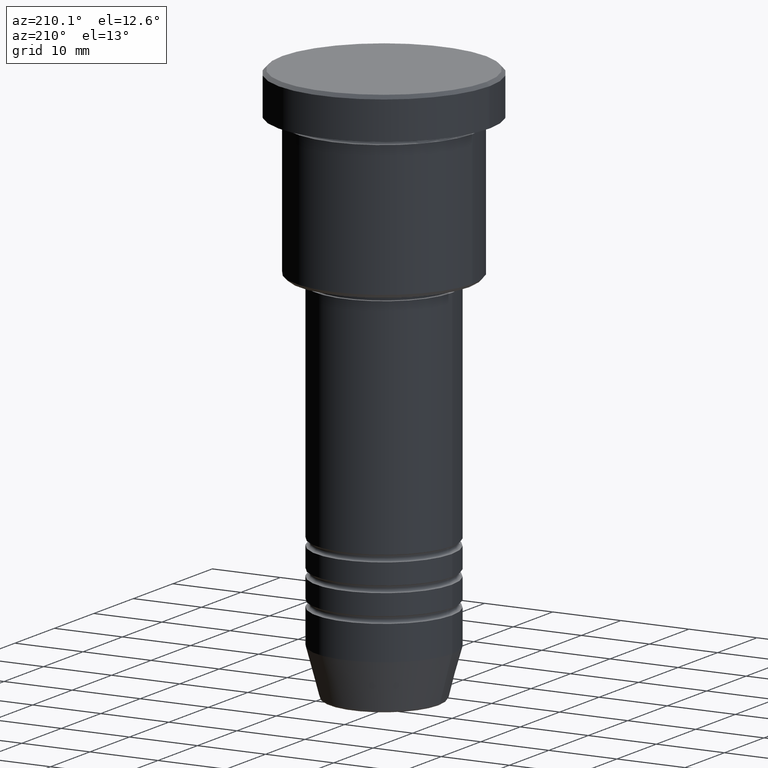
[diagram: clean part render]
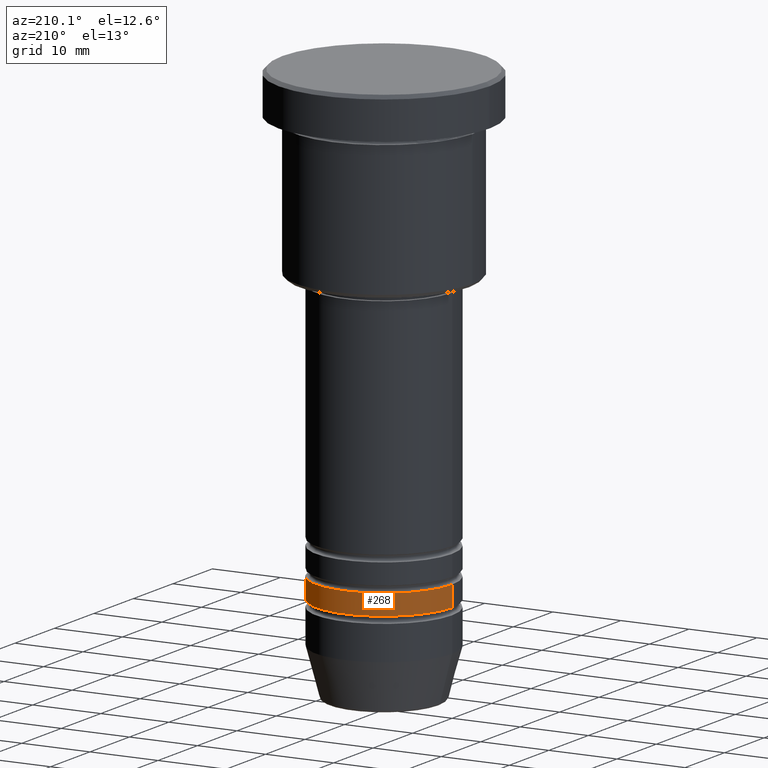
[diagram: same view with one face highlighted and labeled with its STEP entity id]
A machine part, auxiliary view. The second image highlights one B-rep face of the part: STEP entity #268.
In plain terms, the highlighted cylindrical surface (partial cylindrical patch) has radius 10 mm, axis along (-0, -0, 1).
Its self-contained STEP definition (entity closure, byte-faithful):
#6 = VERTEX_POINT ( 'NONE', #143 ) ;
#21 = CARTESIAN_POINT ( 'NONE',  ( 0.000000000000000000, 0.000000000000000000, -68.99999999999988631 ) ) ;
#31 = CARTESIAN_POINT ( 'NONE',  ( -10.00000000000000000, 1.224646799147353256E-15, -65.99999999999988631 ) ) ;
#66 = CARTESIAN_POINT ( 'NONE',  ( 10.00000000000000000, 0.000000000000000000, -65.99999999999988631 ) ) ;
#130 = VECTOR ( 'NONE', #431, 1000.000000000000000 ) ;
#143 = CARTESIAN_POINT ( 'NONE',  ( -10.00000000000000178, 1.224646799147353454E-15, -68.99999999999988631 ) ) ;
#207 = FACE_OUTER_BOUND ( 'NONE', #951, .T. ) ;
#224 = CARTESIAN_POINT ( 'NONE',  ( -10.00000000000000178, 1.224646799147353454E-15, 0.000000000000000000 ) ) ;
#233 = EDGE_CURVE ( 'NONE', #331, #6, #594, .T. ) ;
#243 = AXIS2_PLACEMENT_3D ( 'NONE', #21, #1099, #487 ) ;
#252 = ORIENTED_EDGE ( 'NONE', *, *, #761, .T. ) ;
#259 = ORIENTED_EDGE ( 'NONE', *, *, #554, .F. ) ;
#268 = ADVANCED_FACE ( 'NONE', ( #207 ), #566, .T. ) ;
#297 = DIRECTION ( 'NONE',  ( 1.000000000000000000, 0.000000000000000000, 0.000000000000000000 ) ) ;
#331 = VERTEX_POINT ( 'NONE', #833 ) ;
#362 = LINE ( 'NONE', #550, #932 ) ;
#372 = VERTEX_POINT ( 'NONE', #31 ) ;
#431 = DIRECTION ( 'NONE',  ( -0.000000000000000000, -0.000000000000000000, 1.000000000000000000 ) ) ;
#487 = DIRECTION ( 'NONE',  ( 1.000000000000000000, 0.000000000000000000, 0.000000000000000000 ) ) ;
#550 = CARTESIAN_POINT ( 'NONE',  ( 10.00000000000000178, 0.000000000000000000, 0.000000000000000000 ) ) ;
#554 = EDGE_CURVE ( 'NONE', #786, #372, #1178, .T. ) ;
#566 = CYLINDRICAL_SURFACE ( 'NONE', #885, 10.00000000000000178 ) ;
#594 = CIRCLE ( 'NONE', #243, 10.00000000000000178 ) ;
#736 = CARTESIAN_POINT ( 'NONE',  ( 0.000000000000000000, 0.000000000000000000, 0.000000000000000000 ) ) ;
#761 = EDGE_CURVE ( 'NONE', #6, #372, #1023, .T. ) ;
#786 = VERTEX_POINT ( 'NONE', #66 ) ;
#833 = CARTESIAN_POINT ( 'NONE',  ( 10.00000000000000178, 0.000000000000000000, -68.99999999999988631 ) ) ;
#855 = EDGE_CURVE ( 'NONE', #331, #786, #362, .T. ) ;
#863 = ORIENTED_EDGE ( 'NONE', *, *, #233, .T. ) ;
#885 = AXIS2_PLACEMENT_3D ( 'NONE', #736, #1117, #297 ) ;
#901 = DIRECTION ( 'NONE',  ( -0.000000000000000000, -0.000000000000000000, 1.000000000000000000 ) ) ;
#932 = VECTOR ( 'NONE', #901, 1000.000000000000000 ) ;
#951 = EDGE_LOOP ( 'NONE', ( #863, #252, #259, #1053 ) ) ;
#962 = AXIS2_PLACEMENT_3D ( 'NONE', #1076, #1071, #1181 ) ;
#1023 = LINE ( 'NONE', #224, #130 ) ;
#1053 = ORIENTED_EDGE ( 'NONE', *, *, #855, .F. ) ;
#1071 = DIRECTION ( 'NONE',  ( -0.000000000000000000, -0.000000000000000000, 1.000000000000000000 ) ) ;
#1076 = CARTESIAN_POINT ( 'NONE',  ( 0.000000000000000000, 0.000000000000000000, -65.99999999999988631 ) ) ;
#1099 = DIRECTION ( 'NONE',  ( -0.000000000000000000, -0.000000000000000000, 1.000000000000000000 ) ) ;
#1117 = DIRECTION ( 'NONE',  ( -0.000000000000000000, -0.000000000000000000, 1.000000000000000000 ) ) ;
#1178 = CIRCLE ( 'NONE', #962, 10.00000000000000000 ) ;
#1181 = DIRECTION ( 'NONE',  ( 1.000000000000000000, 0.000000000000000000, 0.000000000000000000 ) ) ;